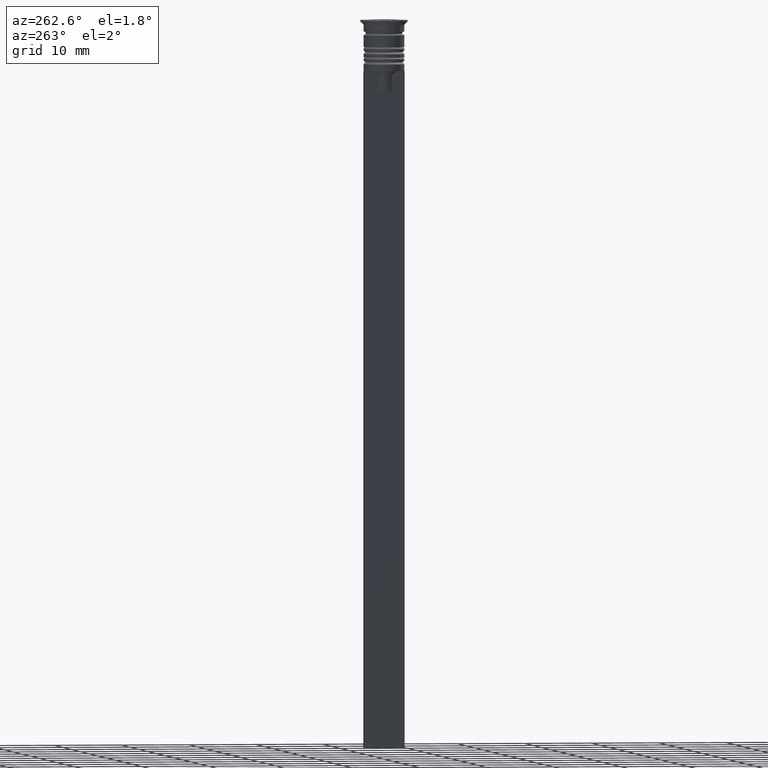
[diagram: clean part render]
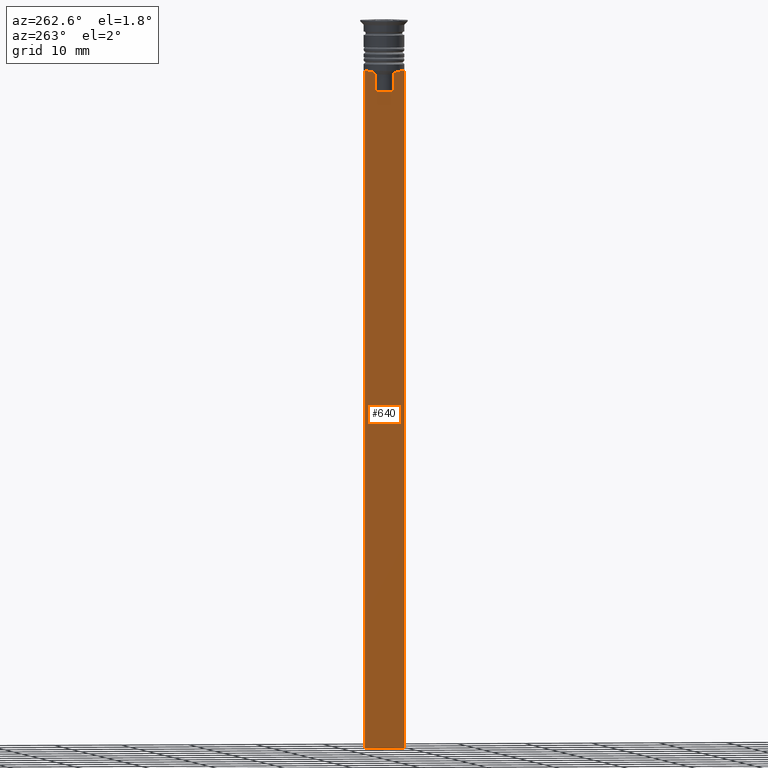
[diagram: same view with one face highlighted and labeled with its STEP entity id]
A machine part, auxiliary view. The second image highlights one B-rep face of the part: STEP entity #640.
In plain terms, the highlighted planar face has unit normal (-1, 0, 0).
Its self-contained STEP definition (entity closure, byte-faithful):
#19 = CARTESIAN_POINT ( 'NONE',  ( -0.5000000000000001110, -3.000000000000000000, -107.5000000000000000 ) ) ;
#25 = CARTESIAN_POINT ( 'NONE',  ( -0.5000000000000001110, -1.659011726860414093, -7.667884880598472286 ) ) ;
#34 = LINE ( 'NONE', #1090, #1027 ) ;
#41 = AXIS2_PLACEMENT_3D ( 'NONE', #1737, #2079, #467 ) ;
#73 = VERTEX_POINT ( 'NONE', #19 ) ;
#171 = DIRECTION ( 'NONE',  ( 0.000000000000000000, -1.000000000000000000, 0.000000000000000000 ) ) ;
#201 = VERTEX_POINT ( 'NONE', #2244 ) ;
#210 = CARTESIAN_POINT ( 'NONE',  ( -0.5000000000000001110, -3.000000000000000000, -1.417237469701779329 ) ) ;
#245 = EDGE_CURVE ( 'NONE', #939, #2247, #798, .T. ) ;
#250 = VECTOR ( 'NONE', #171, 1000.000000000000000 ) ;
#266 = CARTESIAN_POINT ( 'NONE',  ( -0.5000000000000001110, -3.000000000000000000, -7.500000000000000000 ) ) ;
#269 = DIRECTION ( 'NONE',  ( 0.000000000000000000, -1.000000000000000000, 0.000000000000000000 ) ) ;
#298 = DIRECTION ( 'NONE',  ( 0.000000000000000000, -1.000000000000000000, 0.000000000000000000 ) ) ;
#306 = CARTESIAN_POINT ( 'NONE',  ( -0.5000000000000001110, 1.659046061654642523, -7.667851756010361619 ) ) ;
#363 = CARTESIAN_POINT ( 'NONE',  ( -0.5000000000000001110, 1.399999999999997691, -10.49999999999999822 ) ) ;
#366 = DIRECTION ( 'NONE',  ( 0.000000000000000000, 0.000000000000000000, -1.000000000000000000 ) ) ;
#380 = ORIENTED_EDGE ( 'NONE', *, *, #2041, .F. ) ;
#394 = VECTOR ( 'NONE', #298, 1000.000000000000000 ) ;
#459 = VERTEX_POINT ( 'NONE', #1851 ) ;
#461 = CARTESIAN_POINT ( 'NONE',  ( -0.5000000000000001110, 3.000000000000000000, -1.417237469701779329 ) ) ;
#467 = DIRECTION ( 'NONE',  ( 0.000000000000000000, 0.000000000000000000, 1.000000000000000000 ) ) ;
#494 = ORIENTED_EDGE ( 'NONE', *, *, #959, .F. ) ;
#499 = EDGE_CURVE ( 'NONE', #1390, #73, #1274, .T. ) ;
#534 = ORIENTED_EDGE ( 'NONE', *, *, #2107, .F. ) ;
#615 = PLANE ( 'NONE',  #41 ) ;
#640 = ADVANCED_FACE ( 'NONE', ( #2231 ), #615, .T. ) ;
#659 = VERTEX_POINT ( 'NONE', #1367 ) ;
#671 = CARTESIAN_POINT ( 'NONE',  ( -0.5000000000000001110, 1.307669683062199217, -8.000000000000000000 ) ) ;
#683 = CARTESIAN_POINT ( 'NONE',  ( -0.5000000000000001110, -3.000000000000000000, -7.500000000000000000 ) ) ;
#711 = EDGE_CURVE ( 'NONE', #659, #1580, #1747, .T. ) ;
#731 = LINE ( 'NONE', #1511, #2269 ) ;
#740 = EDGE_CURVE ( 'NONE', #201, #659, #2201, .T. ) ;
#752 = CARTESIAN_POINT ( 'NONE',  ( -0.5000000000000001110, -1.484307477388859153, -7.835011508197190722 ) ) ;
#798 = LINE ( 'NONE', #2262, #1579 ) ;
#839 = DIRECTION ( 'NONE',  ( 0.000000000000000000, 0.000000000000000000, -1.000000000000000000 ) ) ;
#871 = VECTOR ( 'NONE', #366, 1000.000000000000000 ) ;
#915 = EDGE_CURVE ( 'NONE', #2247, #2304, #1954, .T. ) ;
#938 = ORIENTED_EDGE ( 'NONE', *, *, #245, .F. ) ;
#939 = VERTEX_POINT ( 'NONE', #1089 ) ;
#959 = EDGE_CURVE ( 'NONE', #1622, #201, #731, .T. ) ;
#1027 = VECTOR ( 'NONE', #1293, 1000.000000000000000 ) ;
#1053 = CARTESIAN_POINT ( 'NONE',  ( -0.5000000000000001110, 1.307669683062199217, -10.49999999999999822 ) ) ;
#1089 = CARTESIAN_POINT ( 'NONE',  ( -0.5000000000000001110, -1.307669683062199217, -10.49999999999999822 ) ) ;
#1090 = CARTESIAN_POINT ( 'NONE',  ( -0.5000000000000001110, -3.000000000000000000, -7.500000000000000000 ) ) ;
#1109 = VECTOR ( 'NONE', #1652, 1000.000000000000000 ) ;
#1114 = LINE ( 'NONE', #363, #1109 ) ;
#1151 = LINE ( 'NONE', #1523, #1219 ) ;
#1183 = VECTOR ( 'NONE', #839, 1000.000000000000000 ) ;
#1202 = ORIENTED_EDGE ( 'NONE', *, *, #1502, .T. ) ;
#1219 = VECTOR ( 'NONE', #1382, 1000.000000000000000 ) ;
#1225 = ORIENTED_EDGE ( 'NONE', *, *, #1861, .F. ) ;
#1232 = CARTESIAN_POINT ( 'NONE',  ( -0.5000000000000001110, 1.484355510416485391, -7.834966642958598015 ) ) ;
#1274 = LINE ( 'NONE', #210, #871 ) ;
#1293 = DIRECTION ( 'NONE',  ( 0.000000000000000000, -1.000000000000000000, 0.000000000000000000 ) ) ;
#1333 = CARTESIAN_POINT ( 'NONE',  ( -0.5000000000000001110, -3.000000000000000000, -7.500000000000000000 ) ) ;
#1367 = CARTESIAN_POINT ( 'NONE',  ( -0.5000000000000001110, 1.307669683062199217, -8.000000000000000000 ) ) ;
#1382 = DIRECTION ( 'NONE',  ( 0.000000000000000000, 1.000000000000000000, 0.000000000000000000 ) ) ;
#1390 = VERTEX_POINT ( 'NONE', #266 ) ;
#1412 = CARTESIAN_POINT ( 'NONE',  ( -0.5000000000000001110, 1.833030277982335532, -7.500000000000000000 ) ) ;
#1502 = EDGE_CURVE ( 'NONE', #1508, #459, #2073, .T. ) ;
#1508 = VERTEX_POINT ( 'NONE', #2063 ) ;
#1510 = ORIENTED_EDGE ( 'NONE', *, *, #711, .F. ) ;
#1511 = CARTESIAN_POINT ( 'NONE',  ( -0.5000000000000001110, -3.000000000000000000, -7.500000000000000000 ) ) ;
#1523 = CARTESIAN_POINT ( 'NONE',  ( -0.5000000000000001110, -3.000000000000000000, -107.5000000000000000 ) ) ;
#1579 = VECTOR ( 'NONE', #2071, 1000.000000000000000 ) ;
#1580 = VERTEX_POINT ( 'NONE', #1053 ) ;
#1620 = CARTESIAN_POINT ( 'NONE',  ( -0.5000000000000001110, 2.856571371417139904, -7.500000000000000000 ) ) ;
#1622 = VERTEX_POINT ( 'NONE', #1620 ) ;
#1636 = CARTESIAN_POINT ( 'NONE',  ( -0.5000000000000001110, -1.833030277982335532, -7.500000000000000000 ) ) ;
#1652 = DIRECTION ( 'NONE',  ( 0.000000000000000000, -1.000000000000000000, 0.000000000000000000 ) ) ;
#1681 = VECTOR ( 'NONE', #1926, 1000.000000000000000 ) ;
#1691 = CARTESIAN_POINT ( 'NONE',  ( -0.5000000000000001110, -1.833030277982335532, -7.500000000000000000 ) ) ;
#1731 = VERTEX_POINT ( 'NONE', #1826 ) ;
#1737 = CARTESIAN_POINT ( 'NONE',  ( -0.5000000000000001110, -3.000000000000000000, -1.417237469701779329 ) ) ;
#1747 = LINE ( 'NONE', #2285, #1183 ) ;
#1777 = LINE ( 'NONE', #683, #250 ) ;
#1798 = ORIENTED_EDGE ( 'NONE', *, *, #1844, .F. ) ;
#1826 = CARTESIAN_POINT ( 'NONE',  ( -0.5000000000000001110, -2.856571371417139904, -7.500000000000000000 ) ) ;
#1844 = EDGE_CURVE ( 'NONE', #73, #459, #1151, .T. ) ;
#1851 = CARTESIAN_POINT ( 'NONE',  ( -0.5000000000000001110, 3.000000000000000000, -107.5000000000000000 ) ) ;
#1861 = EDGE_CURVE ( 'NONE', #2304, #1731, #2232, .T. ) ;
#1919 = ORIENTED_EDGE ( 'NONE', *, *, #499, .F. ) ;
#1926 = DIRECTION ( 'NONE',  ( 0.000000000000000000, 0.000000000000000000, -1.000000000000000000 ) ) ;
#1952 = EDGE_LOOP ( 'NONE', ( #1984, #494, #380, #1202, #1798, #1919, #534, #1225, #2090, #938, #2190, #1510 ) ) ;
#1954 = B_SPLINE_CURVE_WITH_KNOTS ( 'NONE', 3,
 ( #2191, #752, #25, #1636 ),
 .UNSPECIFIED., .F., .F.,
 ( 4, 4 ),
 ( 0.007225659348748070081, 0.007950554640278040958 ),
 .UNSPECIFIED. ) ;
#1984 = ORIENTED_EDGE ( 'NONE', *, *, #740, .F. ) ;
#2041 = EDGE_CURVE ( 'NONE', #1508, #1622, #1777, .T. ) ;
#2063 = CARTESIAN_POINT ( 'NONE',  ( -0.5000000000000001110, 3.000000000000000000, -7.500000000000000000 ) ) ;
#2071 = DIRECTION ( 'NONE',  ( -0.000000000000000000, -0.000000000000000000, 1.000000000000000000 ) ) ;
#2073 = LINE ( 'NONE', #461, #1681 ) ;
#2079 = DIRECTION ( 'NONE',  ( -1.000000000000000000, 0.000000000000000000, 0.000000000000000000 ) ) ;
#2090 = ORIENTED_EDGE ( 'NONE', *, *, #915, .F. ) ;
#2107 = EDGE_CURVE ( 'NONE', #1731, #1390, #34, .T. ) ;
#2170 = EDGE_CURVE ( 'NONE', #1580, #939, #1114, .T. ) ;
#2181 = CARTESIAN_POINT ( 'NONE',  ( -0.5000000000000001110, -1.307669683062199217, -8.000000000000000000 ) ) ;
#2190 = ORIENTED_EDGE ( 'NONE', *, *, #2170, .F. ) ;
#2191 = CARTESIAN_POINT ( 'NONE',  ( -0.5000000000000001110, -1.307669683062199217, -8.000000000000000000 ) ) ;
#2201 = B_SPLINE_CURVE_WITH_KNOTS ( 'NONE', 3,
 ( #1412, #306, #1232, #671 ),
 .UNSPECIFIED., .F., .F.,
 ( 4, 4 ),
 ( 0.003278537493109840491, 0.004003794023484932504 ),
 .UNSPECIFIED. ) ;
#2231 = FACE_OUTER_BOUND ( 'NONE', #1952, .T. ) ;
#2232 = LINE ( 'NONE', #1333, #394 ) ;
#2244 = CARTESIAN_POINT ( 'NONE',  ( -0.5000000000000001110, 1.833030277982335532, -7.500000000000000000 ) ) ;
#2247 = VERTEX_POINT ( 'NONE', #2181 ) ;
#2262 = CARTESIAN_POINT ( 'NONE',  ( -0.5000000000000001110, -1.307669683062199217, 0.000000000000000000 ) ) ;
#2269 = VECTOR ( 'NONE', #269, 1000.000000000000000 ) ;
#2285 = CARTESIAN_POINT ( 'NONE',  ( -0.5000000000000001110, 1.307669683062199217, 0.000000000000000000 ) ) ;
#2304 = VERTEX_POINT ( 'NONE', #1691 ) ;